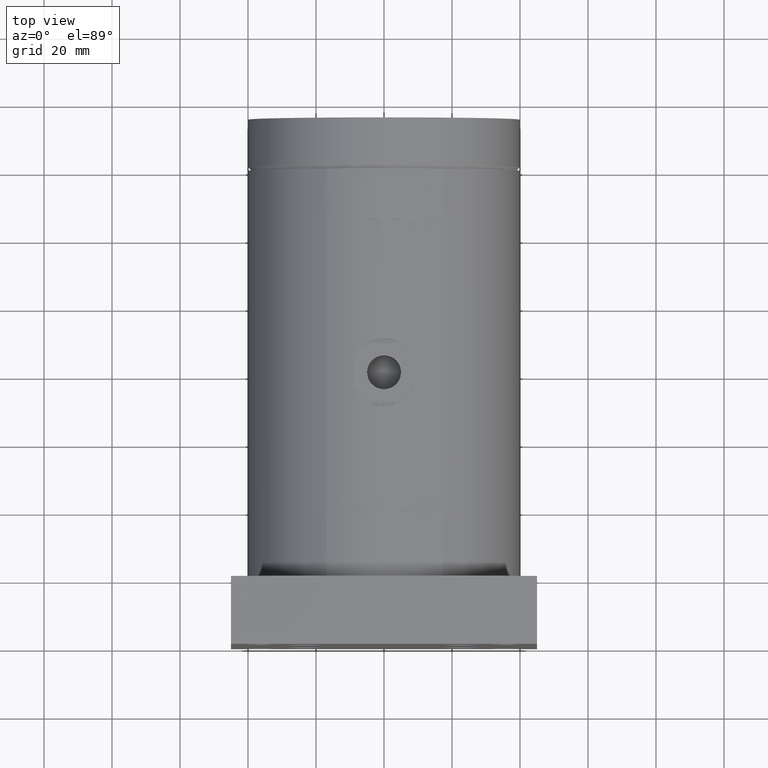
[diagram: clean part render]
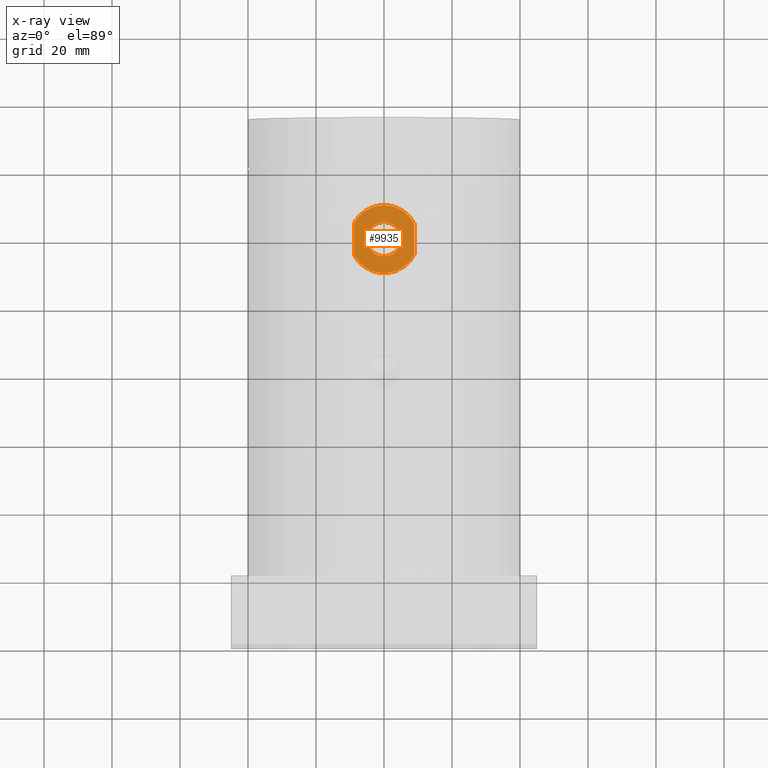
[diagram: x-ray — body ghosted, one internal face saturated and labeled with its STEP entity id]
A machine part, top view, then the same camera in x-ray: the body is ghosted and one INTERNAL B-rep face — a face not visible from any outside direction — is saturated and labeled: STEP entity #9935.
In plain terms, the highlighted planar face has unit normal (0, 0, -1).
Its self-contained STEP definition (entity closure, byte-faithful):
#410 = DIRECTION ( 'NONE',  ( 0.0000000000000000000, -1.000000000000000000, 0.0000000000000000000 ) ) ;
#1137 = AXIS2_PLACEMENT_3D ( 'NONE', #23034, #28233, #22703 ) ;
#1216 = CIRCLE ( 'NONE', #24990, 10.00000000000000000 ) ;
#1946 = ORIENTED_EDGE ( 'NONE', *, *, #8190, .T. ) ;
#3705 = DIRECTION ( 'NONE',  ( 0.0000000000000000000, 0.0000000000000000000, -1.000000000000000000 ) ) ;
#4040 = CARTESIAN_POINT ( 'NONE',  ( 0.0000000000000000000, 120.5000000000000000, -39.00000000000000000 ) ) ;
#4660 = VECTOR ( 'NONE', #5372, 1000.000000000000000 ) ;
#5372 = DIRECTION ( 'NONE',  ( -0.0000000000000000000, 1.000000000000000000, -0.0000000000000000000 ) ) ;
#5419 = CARTESIAN_POINT ( 'NONE',  ( -8.888194417315590500, 20.00000000000000000, -39.00000000000000000 ) ) ;
#5594 = CARTESIAN_POINT ( 'NONE',  ( -8.888194417315590500, 115.9174243050442100, -39.00000000000000000 ) ) ;
#5849 = LINE ( 'NONE', #13090, #4660 ) ;
#6117 = CIRCLE ( 'NONE', #22386, 5.000000000000000000 ) ;
#7638 = VERTEX_POINT ( 'NONE', #13538 ) ;
#7659 = VERTEX_POINT ( 'NONE', #5594 ) ;
#8190 = EDGE_CURVE ( 'NONE', #7638, #19583, #12418, .T. ) ;
#8426 = DIRECTION ( 'NONE',  ( 0.0000000000000000000, 0.0000000000000000000, -1.000000000000000000 ) ) ;
#9935 = ADVANCED_FACE ( 'NONE', ( #33367, #28099 ), #19202, .T. ) ;
#11536 = VERTEX_POINT ( 'NONE', #15219 ) ;
#11901 = ORIENTED_EDGE ( 'NONE', *, *, #12099, .F. ) ;
#12099 = EDGE_CURVE ( 'NONE', #11536, #22337, #6117, .T. ) ;
#12418 = CIRCLE ( 'NONE', #22747, 10.00000000000000000 ) ;
#12475 = EDGE_CURVE ( 'NONE', #7638, #7659, #19871, .T. ) ;
#12767 = CARTESIAN_POINT ( 'NONE',  ( 8.888194417315590500, 115.9174243050442100, -39.00000000000000000 ) ) ;
#13067 = CARTESIAN_POINT ( 'NONE',  ( 0.0000000000000000000, 120.5000000000000000, -39.00000000000000000 ) ) ;
#13090 = CARTESIAN_POINT ( 'NONE',  ( 8.888194417315590500, 20.00000000000000000, -39.00000000000000000 ) ) ;
#13538 = CARTESIAN_POINT ( 'NONE',  ( -8.888194417315590500, 125.0825756949557900, -39.00000000000000000 ) ) ;
#15219 = CARTESIAN_POINT ( 'NONE',  ( 5.000000000000000000, 120.5000000000000000, -39.00000000000000000 ) ) ;
#15512 = DIRECTION ( 'NONE',  ( -1.000000000000000000, 0.0000000000000000000, 0.0000000000000000000 ) ) ;
#15811 = DIRECTION ( 'NONE',  ( 0.0000000000000000000, 0.0000000000000000000, -1.000000000000000000 ) ) ;
#16938 = ORIENTED_EDGE ( 'NONE', *, *, #28040, .F. ) ;
#17843 = ORIENTED_EDGE ( 'NONE', *, *, #32311, .F. ) ;
#18022 = AXIS2_PLACEMENT_3D ( 'NONE', #4040, #3705, #22121 ) ;
#19202 = PLANE ( 'NONE',  #18022 ) ;
#19583 = VERTEX_POINT ( 'NONE', #28162 ) ;
#19871 = LINE ( 'NONE', #5419, #27558 ) ;
#20861 = CARTESIAN_POINT ( 'NONE',  ( 0.0000000000000000000, 120.5000000000000000, -39.00000000000000000 ) ) ;
#21086 = CARTESIAN_POINT ( 'NONE',  ( 0.0000000000000000000, 120.5000000000000000, -39.00000000000000000 ) ) ;
#22121 = DIRECTION ( 'NONE',  ( -1.000000000000000000, 0.0000000000000000000, 0.0000000000000000000 ) ) ;
#22337 = VERTEX_POINT ( 'NONE', #29173 ) ;
#22386 = AXIS2_PLACEMENT_3D ( 'NONE', #13067, #8426, #26028 ) ;
#22703 = DIRECTION ( 'NONE',  ( -1.000000000000000000, 0.0000000000000000000, 0.0000000000000000000 ) ) ;
#22747 = AXIS2_PLACEMENT_3D ( 'NONE', #20861, #15811, #28661 ) ;
#23034 = CARTESIAN_POINT ( 'NONE',  ( 0.0000000000000000000, 120.5000000000000000, -39.00000000000000000 ) ) ;
#23934 = EDGE_LOOP ( 'NONE', ( #17843, #11901 ) ) ;
#24990 = AXIS2_PLACEMENT_3D ( 'NONE', #21086, #30970, #15512 ) ;
#26028 = DIRECTION ( 'NONE',  ( -1.000000000000000000, 0.0000000000000000000, 0.0000000000000000000 ) ) ;
#26841 = VERTEX_POINT ( 'NONE', #12767 ) ;
#27473 = CIRCLE ( 'NONE', #1137, 5.000000000000000000 ) ;
#27536 = ORIENTED_EDGE ( 'NONE', *, *, #31312, .T. ) ;
#27558 = VECTOR ( 'NONE', #410, 1000.000000000000000 ) ;
#28040 = EDGE_CURVE ( 'NONE', #26841, #19583, #5849, .T. ) ;
#28051 = ORIENTED_EDGE ( 'NONE', *, *, #12475, .F. ) ;
#28099 = FACE_OUTER_BOUND ( 'NONE', #30933, .T. ) ;
#28162 = CARTESIAN_POINT ( 'NONE',  ( 8.888194417315590500, 125.0825756949557900, -39.00000000000000000 ) ) ;
#28233 = DIRECTION ( 'NONE',  ( 0.0000000000000000000, 0.0000000000000000000, -1.000000000000000000 ) ) ;
#28661 = DIRECTION ( 'NONE',  ( -1.000000000000000000, 0.0000000000000000000, 0.0000000000000000000 ) ) ;
#29173 = CARTESIAN_POINT ( 'NONE',  ( -5.000000000000000000, 120.5000000000000000, -39.00000000000000000 ) ) ;
#30933 = EDGE_LOOP ( 'NONE', ( #27536, #28051, #1946, #16938 ) ) ;
#30970 = DIRECTION ( 'NONE',  ( 0.0000000000000000000, 0.0000000000000000000, -1.000000000000000000 ) ) ;
#31312 = EDGE_CURVE ( 'NONE', #26841, #7659, #1216, .T. ) ;
#32311 = EDGE_CURVE ( 'NONE', #22337, #11536, #27473, .T. ) ;
#33367 = FACE_BOUND ( 'NONE', #23934, .T. ) ;